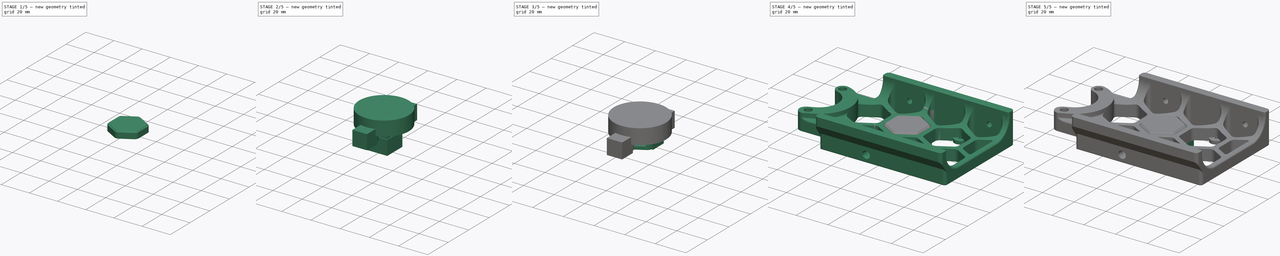
[diagram: build sequence overview — one tinted view per stage of 5, left to right]
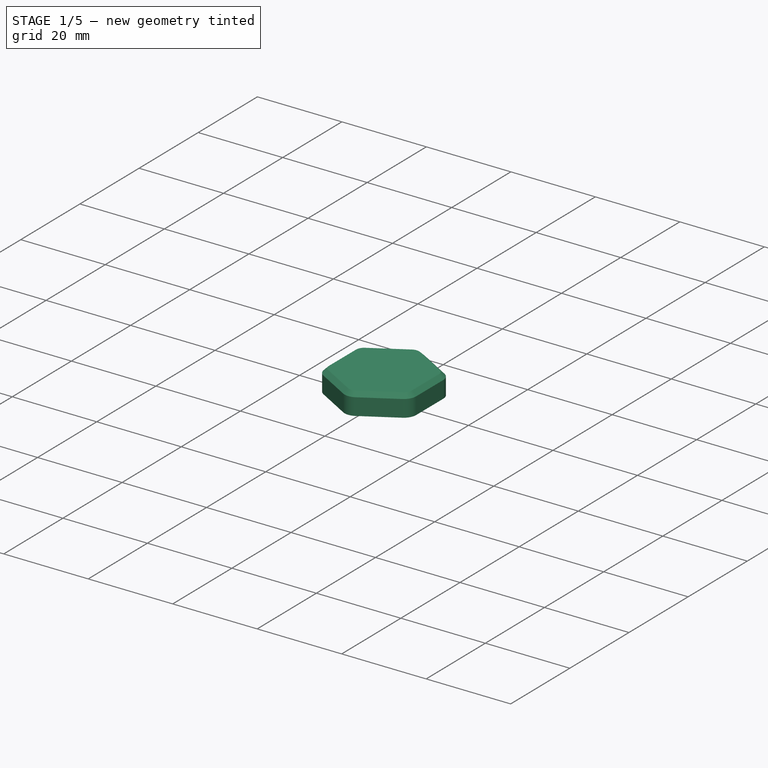
[diagram: stage 1 of 5 — iso view after this stage's code; geometry added in this stage tinted green]
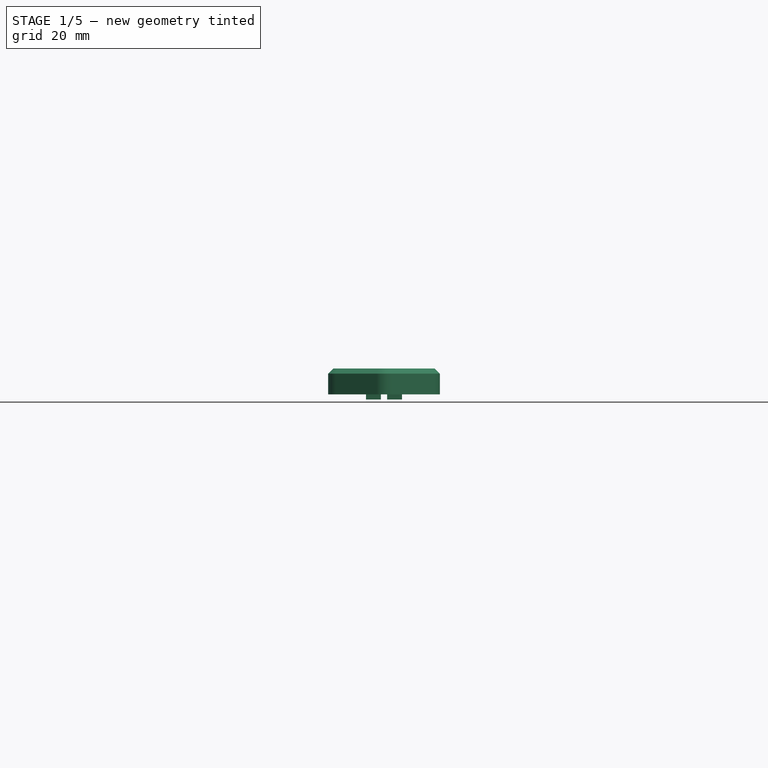
[diagram: stage 1 of 5 — front view after this stage's code; geometry added in this stage tinted green]
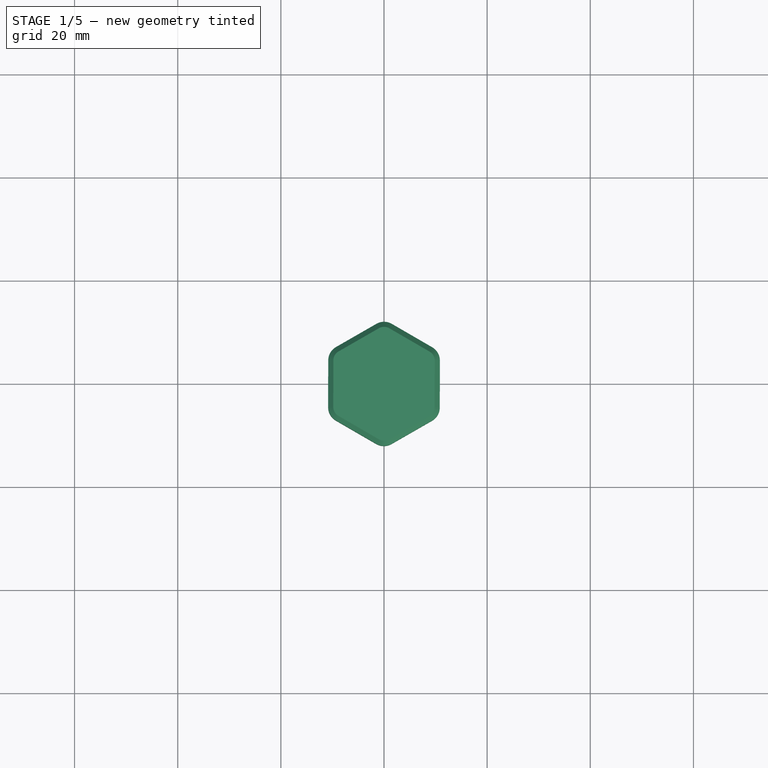
[diagram: stage 1 of 5 — top view after this stage's code; geometry added in this stage tinted green]
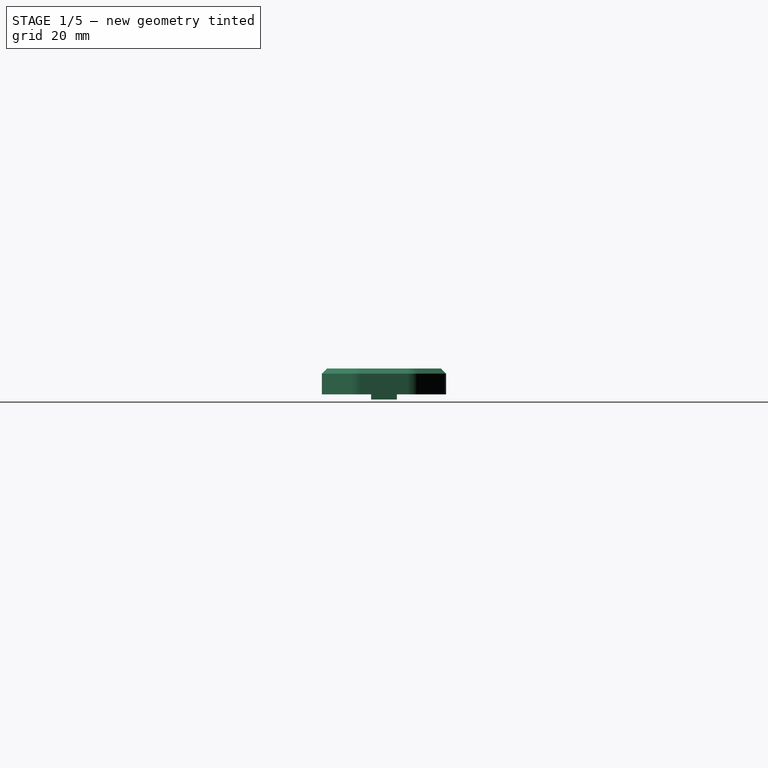
[diagram: stage 1 of 5 — right view after this stage's code; geometry added in this stage tinted green]
FCSTD DOCUMENT  (FreeCAD 0.18R16146 (Git))
Label: skirt-mx
License: Other
LicenseURL: GPL3
objects: Part::Box×13, Part::MultiFuse×12, Part::Cylinder×11, Part::Feature×10, Part::Cut×10, Sketcher::SketchObject×3, PartDesign::Fillet×3, PartDesign::Pad×2, PartDesign::Body×2, PartDesign::Chamfer×2, Part::Chamfer×2, PartDesign::Pocket×1, Part::MultiCommon×1
note: 75 computed .brp shape members not serialized (recipe doc carries the construction recipe); baked Part::Feature solids carry a one-line shape summary decoded from their .brp

FEATURE [PartDesign::Body] Body001
  Group = -> [Sketch001,Pad001,Fillet001,Chamfer001,Sketch002,Pocket,Fillet002,Chamfer002]
  Origin = -> Origin001
  Placement = pos=(0,0,-4) rot=(0,0,1;0rad)
  Tip = -> Chamfer002
FEATURE [Part::Box] Box005  label="Cube005"
  AttacherType = Attacher::AttachEngine3D
  Height = 4
  Length = 7
  Placement = pos=(-3.5,-2.5,1) rot=(0,0,1;0rad)
  Width = 5
FEATURE [Part::Feature] Body001001  label="Body002"
  Placement = pos=(0,0,1) rot=(0,0,1;0rad)
  shape: bbox 21.67 x 24.07 x 10 mm, 51 faces (baked)
FEATURE [Part::Cylinder] Cylinder010
  Angle = 360
  AttacherType = Attacher::AttachEngine3D
  Height = 10
  Radius = 14
FEATURE [Part::MultiCommon] Common006
  Shapes = -> [Body001001,Cylinder010]
FEATURE [Part::Cylinder] Cylinder013
  Angle = 360
  AttacherType = Attacher::AttachEngine3D
  Height = 2
  Radius = 15
FEATURE [Part::Cut] Cut012
  Base = -> Common006
  Tool = -> Cylinder013
FEATURE [Part::Box] Box014  label="Cube014"
  AttacherType = Attacher::AttachEngine3D
  Height = 10
  Length = 4.2
  Placement = pos=(-2.1,-0.6,0) rot=(0,0,1;0rad)
  Width = 1.2
FEATURE [Part::Box] Box015  label="Cube015"
  AttacherType = Attacher::AttachEngine3D
  Height = 10
  Length = 1.2
  Placement = pos=(-0.6,-3.1,0) rot=(0,0,1;0rad)
  Width = 6.2
FEATURE [Part::MultiFuse] Fusion009011
  Shapes = -> [Box015,Box014]
FEATURE [Part::Chamfer] Chamfer003
  Base = -> Fusion009011
  Edges = 4 edges r=0.4: [Edge2,Edge18,Edge35,Edge43]
  Placement = pos=(0,0,-5) rot=(0,0,1;0rad)
FEATURE [Part::MultiFuse] Fusion009014
  Shapes = -> [Cut012,Box005]
FEATURE [Part::Cut] Cut023  label="cap"
  Base = -> Fusion009014
  Placement = pos=(0,0,5) rot=(0,0,1;0rad)
  Tool = -> Chamfer003
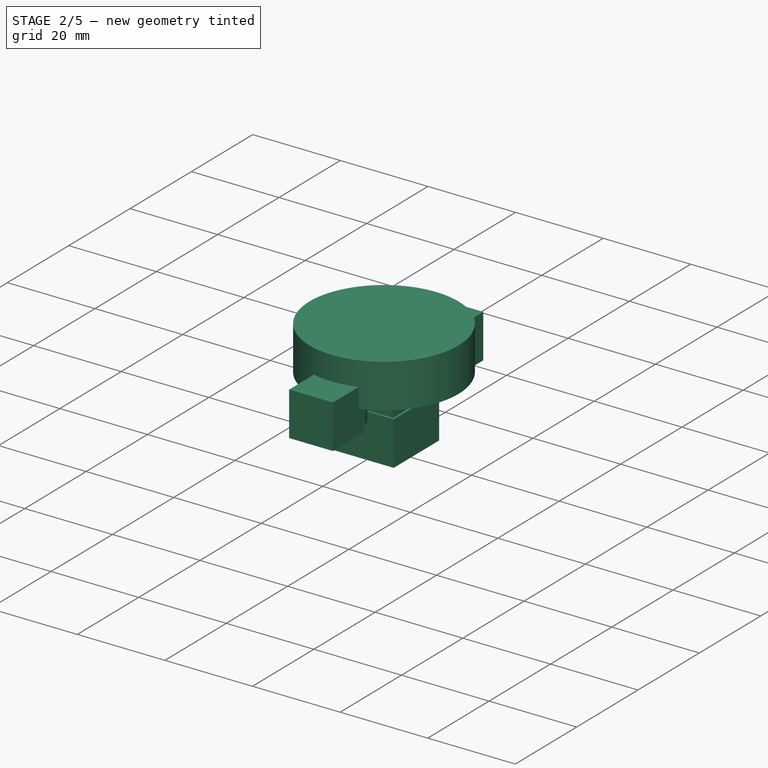
[diagram: stage 2 of 5 — iso view after this stage's code; geometry added in this stage tinted green]
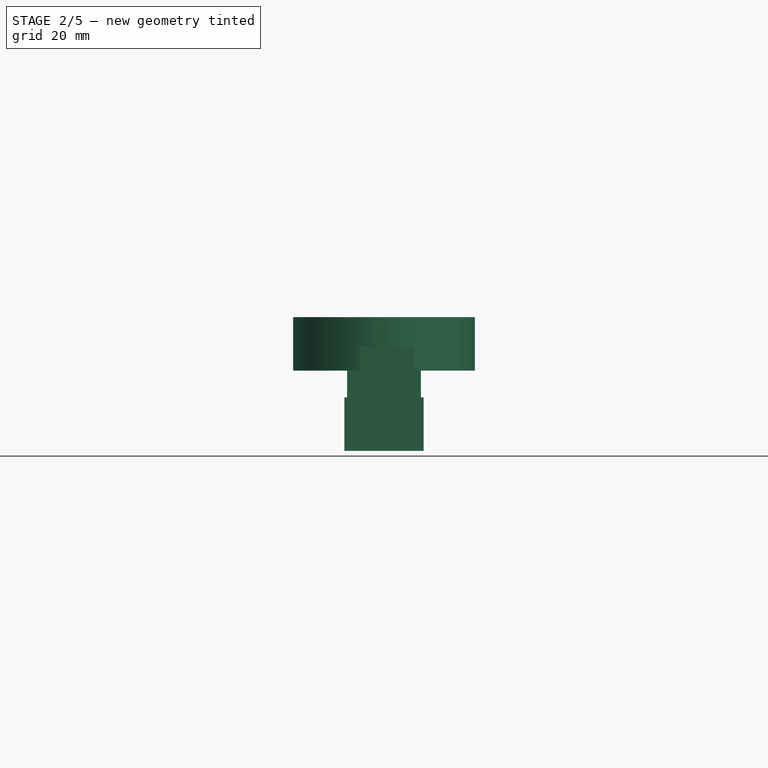
[diagram: stage 2 of 5 — front view after this stage's code; geometry added in this stage tinted green]
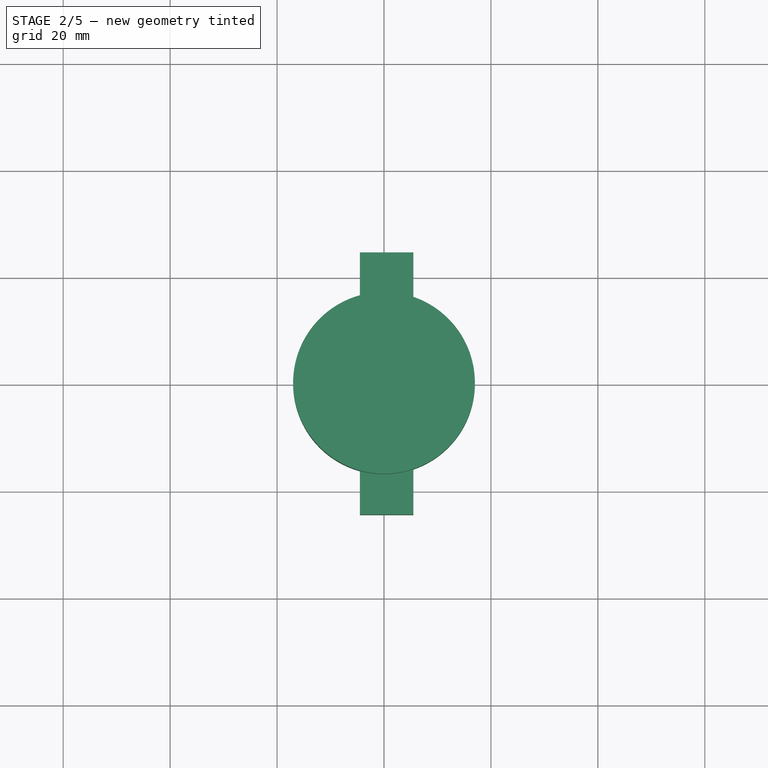
[diagram: stage 2 of 5 — top view after this stage's code; geometry added in this stage tinted green]
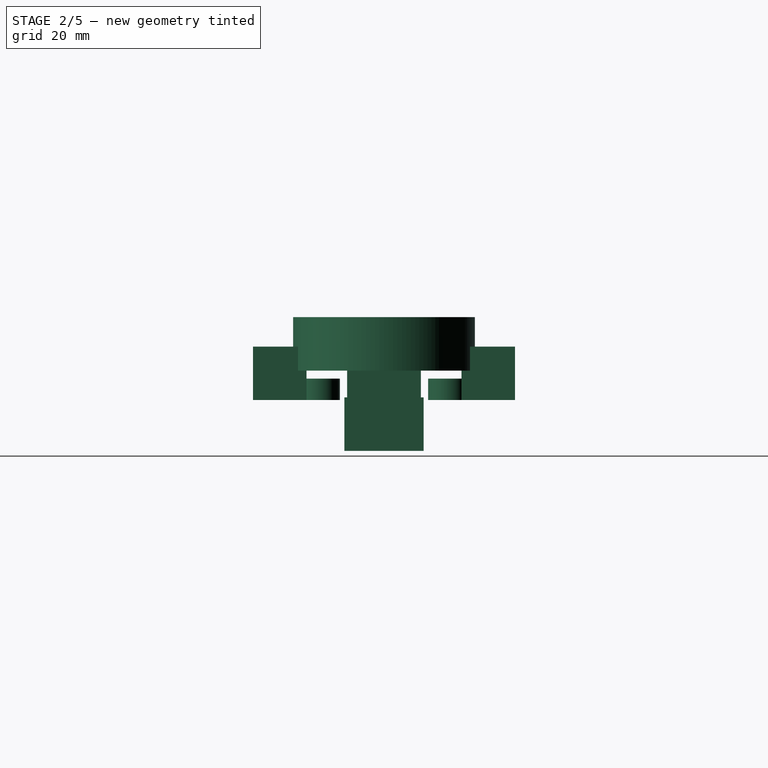
[diagram: stage 2 of 5 — right view after this stage's code; geometry added in this stage tinted green]
FEATURE [Part::Cylinder] Cylinder002
  Angle = 360
  AttacherType = Attacher::AttachEngine3D
  Height = 4
  Placement = pos=(0,12,0) rot=(0,0,1;0rad)
  Radius = 3.75
FEATURE [Part::Cylinder] Cylinder003
  Angle = 360
  AttacherType = Attacher::AttachEngine3D
  Height = 4
  Placement = pos=(0,-12,0) rot=(0,0,1;0rad)
  Radius = 3.75
FEATURE [Part::Cylinder] Cylinder004
  Angle = 360
  AttacherType = Attacher::AttachEngine3D
  Height = 4
  Placement = pos=(0,-12,0) rot=(0,0,1;0rad)
  Radius = 1.25
FEATURE [Part::Cylinder] Cylinder005
  Angle = 360
  AttacherType = Attacher::AttachEngine3D
  Height = 4
  Placement = pos=(0,12,0) rot=(0,0,1;0rad)
  Radius = 1.25
FEATURE [Part::MultiFuse] Fusion011
  Shapes = -> [Cylinder003,Cylinder002]
FEATURE [Part::MultiFuse] Fusion013
  Shapes = -> [Cylinder004,Cylinder005]
FEATURE [Part::Box] Box012  label="Cube012"
  AttacherType = Attacher::AttachEngine3D
  Height = 10
  Length = 13.8
  Placement = pos=(-6.9,-6.9,0) rot=(0,0,1;0rad)
  Width = 13.8
FEATURE [Part::Box] Box013  label="Cube013"
  AttacherType = Attacher::AttachEngine3D
  Height = 10
  Length = 14.8
  Placement = pos=(-7.4,-7.4,-9.5) rot=(0,0,1;0rad)
  Width = 14.8
FEATURE [Part::Box] Box018  label="Cube018"
  AttacherType = Attacher::AttachEngine3D
  Height = 10
  Length = 10
  Placement = pos=(-4.5,-24.5,0) rot=(0,0,1;0rad)
  Width = 10
FEATURE [Part::Box] Box019  label="Cube019"
  AttacherType = Attacher::AttachEngine3D
  Height = 10
  Length = 10
  Placement = pos=(-4.5,14.5,0) rot=(0,0,1;0rad)
  Width = 10
FEATURE [Part::MultiFuse] Fusion009013
  Shapes = -> [Box018,Box019]
FEATURE [Part::Cylinder] Cylinder014
  Angle = 360
  AttacherType = Attacher::AttachEngine3D
  Height = 10
  Placement = pos=(0,0,5.5) rot=(0,0,1;0rad)
  Radius = 17
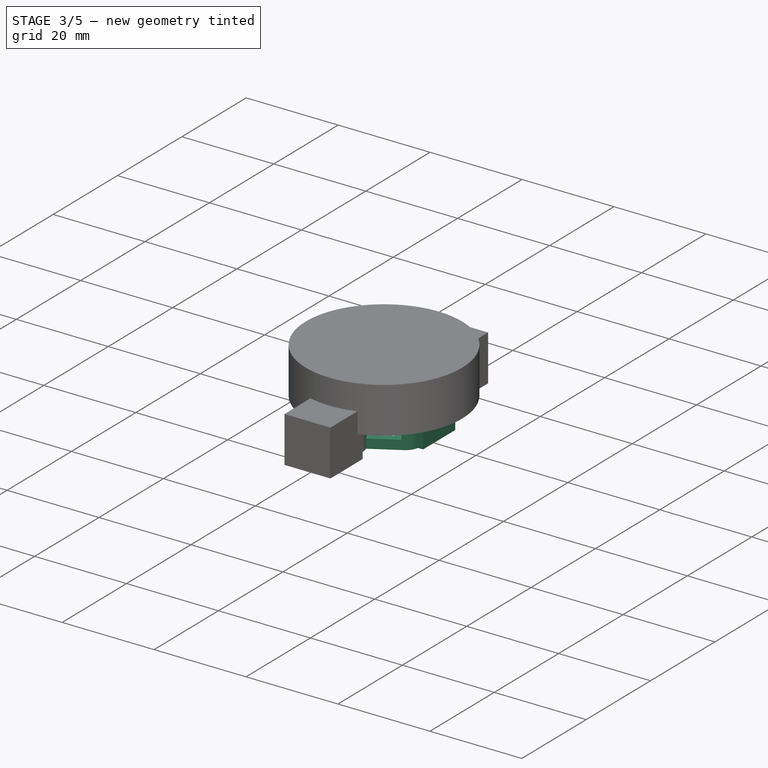
[diagram: stage 3 of 5 — iso view after this stage's code; geometry added in this stage tinted green]
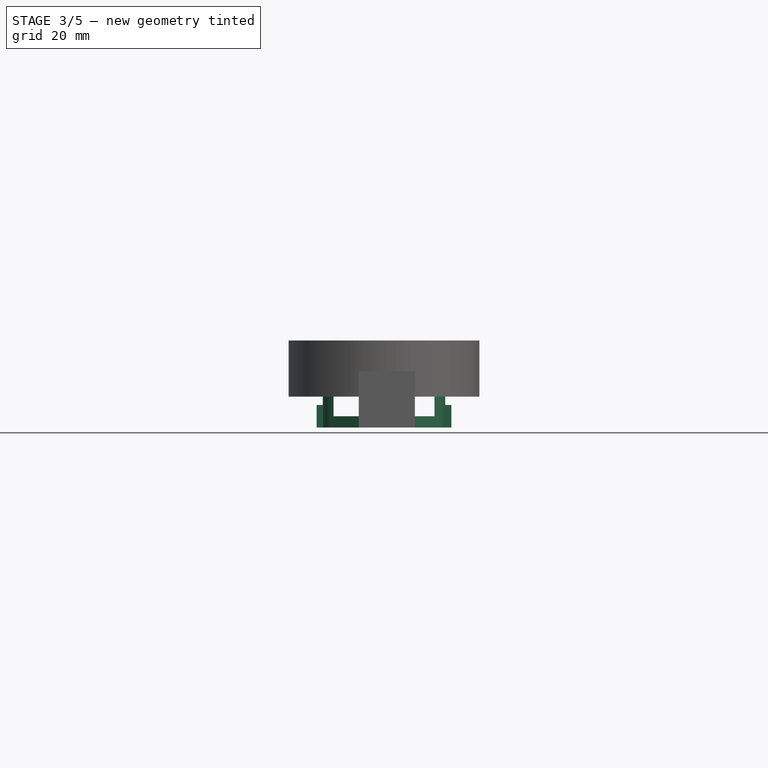
[diagram: stage 3 of 5 — front view after this stage's code; geometry added in this stage tinted green]
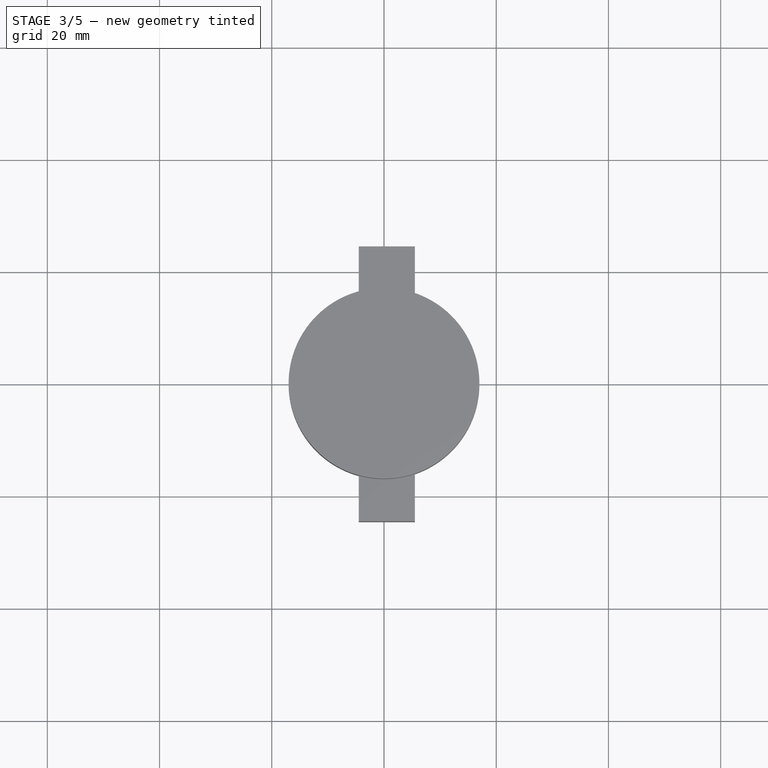
[diagram: stage 3 of 5 — top view after this stage's code; geometry added in this stage tinted green]
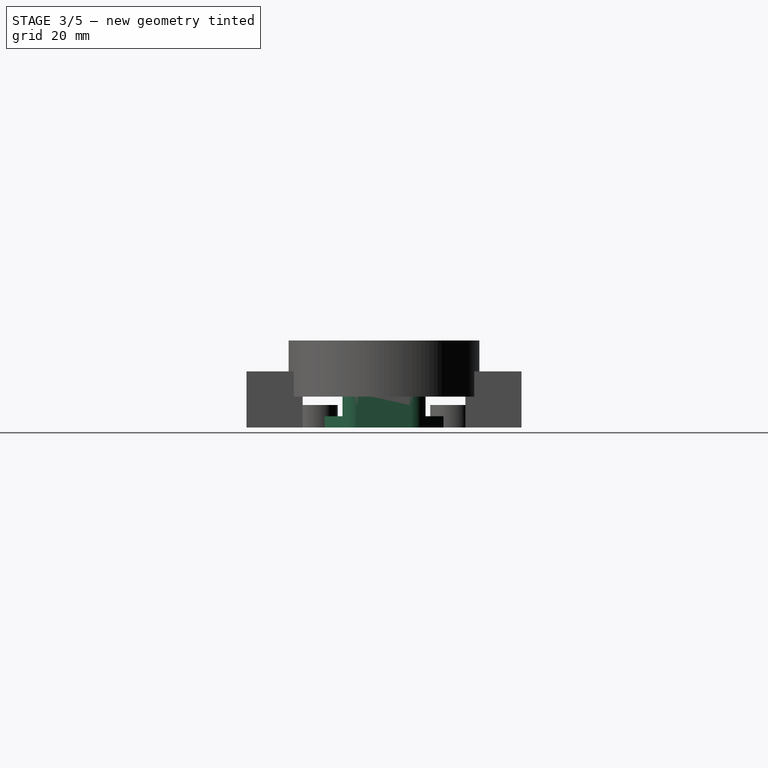
[diagram: stage 3 of 5 — right view after this stage's code; geometry added in this stage tinted green]
FEATURE [Sketcher::SketchObject] Sketch
  MapMode = 5
  Support = -> [XY_Plane]
  sketch-geometry (7):
    g0: LineSegment StartX=0 StartY=12.6 StartZ=0 EndX=-10.9119 EndY=6.3 EndZ=0
    g1: LineSegment StartX=-10.9119 StartY=6.3 StartZ=0 EndX=-10.9119 EndY=-6.3 EndZ=0
    g2: LineSegment StartX=-10.9119 StartY=-6.3 StartZ=0 EndX=-1.8e-15 EndY=-12.6 EndZ=0
    g3: LineSegment StartX=-1.5e-15 StartY=-12.6 StartZ=0 EndX=10.9119 EndY=-6.3 EndZ=0
    g4: LineSegment StartX=10.9119 StartY=-6.3 StartZ=0 EndX=10.9119 EndY=6.3 EndZ=0
    g5: LineSegment StartX=10.9119 StartY=6.3 StartZ=0 EndX=0 EndY=12.6 EndZ=0
    g6: Circle [constr] CenterX=0 CenterY=0 CenterZ=0 NormalX=0 NormalY=0 NormalZ=1 AngleXU=0 Radius=12.6
  constraints (15):
    c: Coincident(g0,g1)
    c: Coincident(g1,g2)
    c: Coincident(g2,g3)
    c: Coincident(g3,g4)
    c: Coincident(g4,g5)
    c: Coincident(g5,g0)
    c: Equal(g0, g1-g5) x5
    c: PointOnObject(g0,g6)
    c: PointOnObject(g1,g6)
    c: PointOnObject(g2,g6)
    c: PointOnObject(g3,g6)
    c: PointOnObject(g4,g6)
    c: PointOnObject(g5,g6)
    c: Coincident(g6,g-1)
    c: PointOnObject(g5,g-2)
FEATURE [PartDesign::Pad] Pad
  Length = 6
  Length2 = 100
  Profile = -> Sketch
  Type = 0
FEATURE [PartDesign::Fillet] Fillet
  Base = -> Pad [Edge8,Edge5,Edge2,Edge1,Edge14,Edge11]
  BaseFeature = -> Pad
  Radius = 3
FEATURE [PartDesign::Body] Body
  Group = -> [Sketch,Pad,Fillet]
  Origin = -> Origin
  Tip = -> Fillet
FEATURE [Part::Box] Box  label="Cube"
  AttacherType = Attacher::AttachEngine3D
  Height = 4
  Length = 24
  Placement = pos=(-12,-5,0) rot=(0,0,1;0rad)
  Width = 10
FEATURE [Part::Box] Box001  label="Cube001"
  AttacherType = Attacher::AttachEngine3D
  Height = 10
  Length = 18
  Placement = pos=(-9,-13,2) rot=(0,0,1;0rad)
  Width = 27
FEATURE [Part::Feature] _00_front_rear_skirt_a_x2mod001001_solid001  label="_00_front_rear_skirt_a_x2mod002 (Solid)001"
  Placement = pos=(-42.5,20.45,-21.5) rot=(0,0,1;0rad)
  shape: bbox 103.6 x 67 x 20 mm, 4380 faces (baked)
FEATURE [Part::MultiFuse] Fusion
  Shapes = -> [Fillet,Box]
FEATURE [Part::Cut] Cut
  Base = -> Fusion
  Tool = -> Box001
FEATURE [Part::MultiFuse] Fusion012
  Shapes = -> [Cut,Fusion011]
FEATURE [Part::Cut] Cut010
  Base = -> Fusion012
  Tool = -> Fusion013
FEATURE [Part::Cut] Cut014
  Base = -> Cut010
  Tool = -> Box012
FEATURE [Part::Cut] Cut015
  Base = -> Cut014
  Tool = -> Box013
FEATURE [Part::Chamfer] Chamfer
  Base = -> Cut015
  Edges = 4 edges r=0.49: [Edge93,Edge94,Edge95,Edge96]
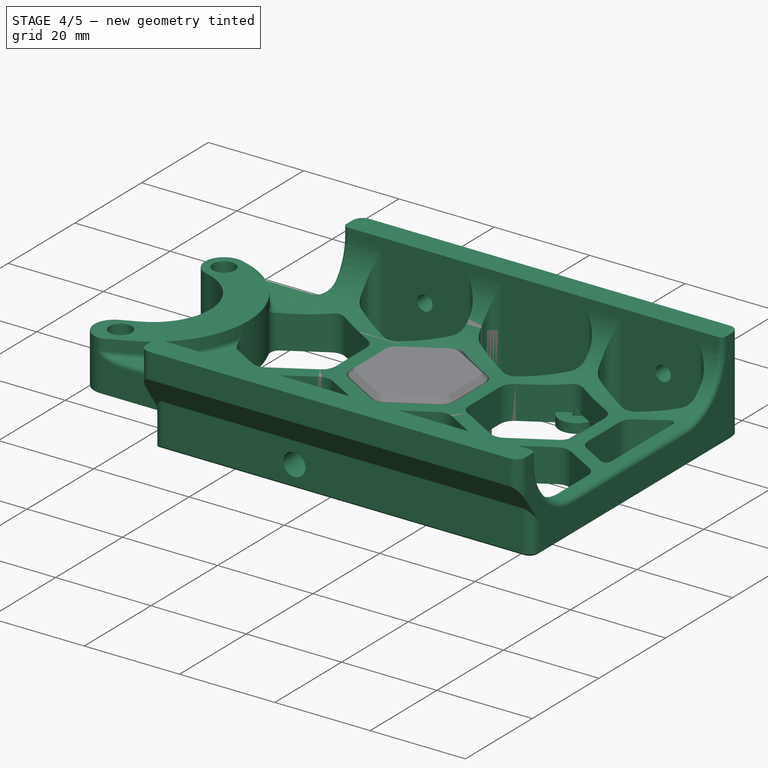
[diagram: stage 4 of 5 — iso view after this stage's code; geometry added in this stage tinted green]
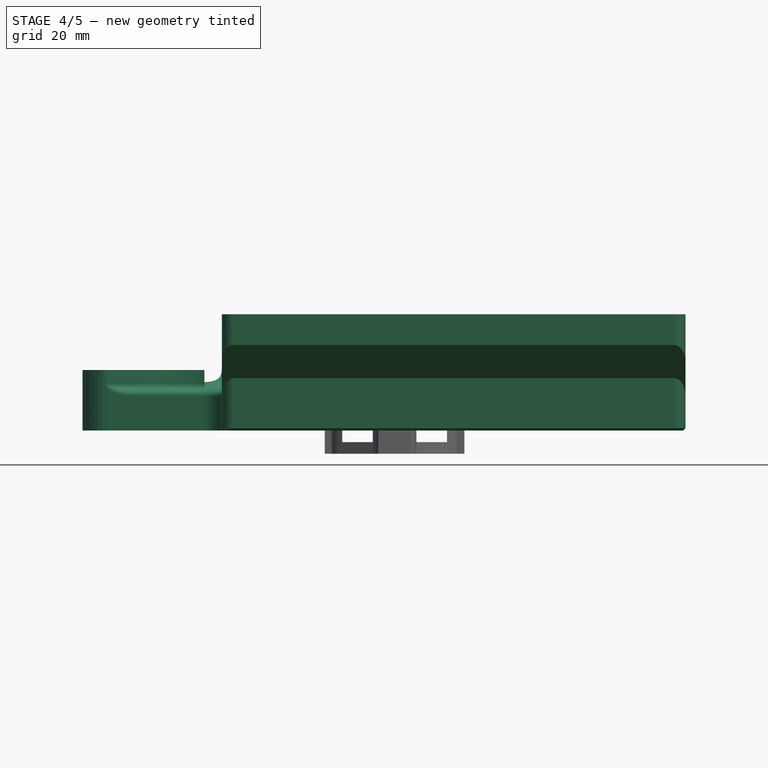
[diagram: stage 4 of 5 — front view after this stage's code; geometry added in this stage tinted green]
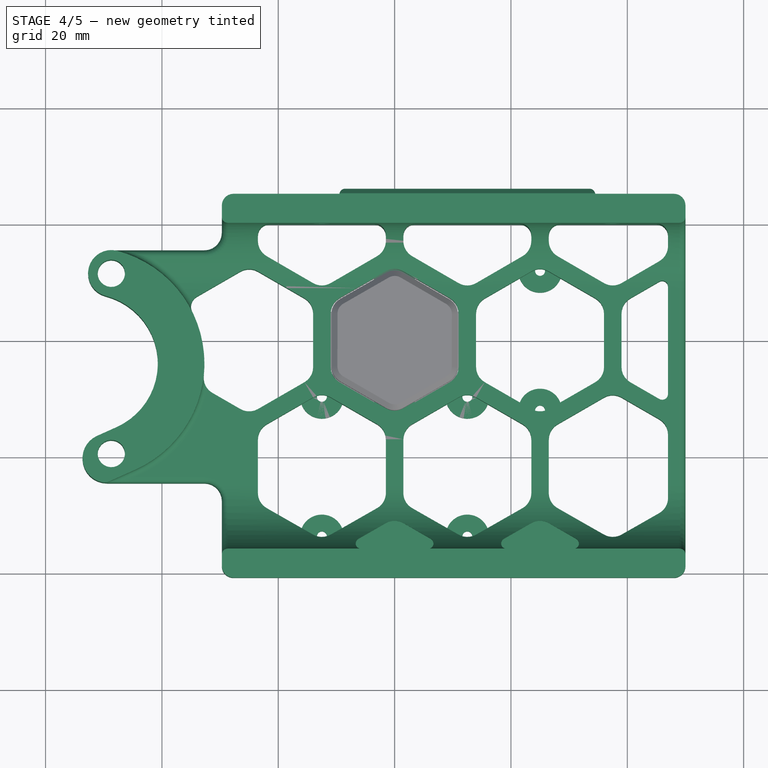
[diagram: stage 4 of 5 — top view after this stage's code; geometry added in this stage tinted green]
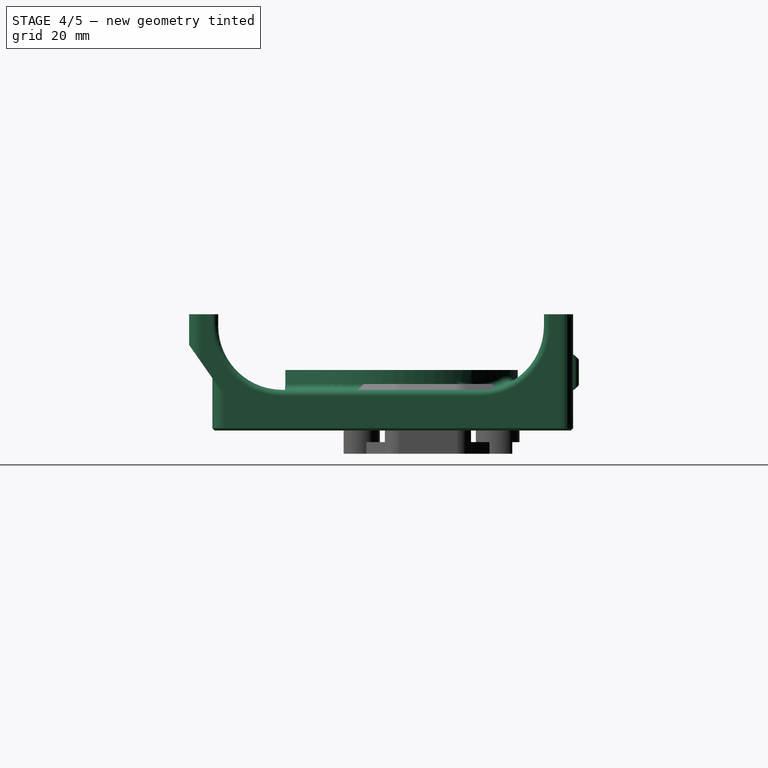
[diagram: stage 4 of 5 — right view after this stage's code; geometry added in this stage tinted green]
FEATURE [Part::Cylinder] Cylinder001
  Angle = 360
  AttacherType = Attacher::AttachEngine3D
  Height = 2
  Placement = pos=(0,12,2) rot=(0,0,1;0rad)
  Radius = 3.75
FEATURE [Part::Cylinder] Cylinder006
  Angle = 360
  AttacherType = Attacher::AttachEngine3D
  Height = 3
  Placement = pos=(0,12,2) rot=(0,0,1;0rad)
  Radius = 0.85
FEATURE [Part::Cylinder] Cylinder007
  Angle = 360
  AttacherType = Attacher::AttachEngine3D
  Height = 3
  Placement = pos=(0,-12,2) rot=(0,0,1;0rad)
  Radius = 0.85
FEATURE [Part::MultiFuse] Fusion009  label="inner"
  Shapes = -> [Cylinder006,Cylinder007]
FEATURE [Part::Feature] Fusion009001  label="inner001"
  shape: bbox 1.7 x 25.7 x 3 mm, 6 faces, 2 solids (baked)
FEATURE [Part::Feature] Fusion007001  label="outer001"
  shape: bbox 7.5 x 31.5 x 2 mm, 6 faces, 2 solids (baked)
FEATURE [Part::Feature] Fusion009002  label="outer002"
  Placement = pos=(-12.5,-21.65,0) rot=(0,0,1;0rad)
  shape: bbox 7.5 x 31.5 x 2 mm, 6 faces, 2 solids (baked)
FEATURE [Part::Feature] Fusion009003  label="inner002"
  Placement = pos=(-12.5,-21.65,0) rot=(0,0,1;0rad)
  shape: bbox 1.7 x 25.7 x 3 mm, 6 faces, 2 solids (baked)
FEATURE [Part::Feature] Fusion009004  label="inner003"
  Placement = pos=(12.5,-21.65,0) rot=(0,0,1;0rad)
  shape: bbox 1.7 x 25.7 x 3 mm, 6 faces, 2 solids (baked)
FEATURE [Part::Feature] Fusion009005  label="outer003"
  Placement = pos=(12.5,-21.65,0) rot=(0,0,1;0rad)
  shape: bbox 7.5 x 31.5 x 2 mm, 6 faces, 2 solids (baked)
FEATURE [Part::Feature] Fusion009006  label="outer004"
  Placement = pos=(25,0,0) rot=(0,0,1;0rad)
  shape: bbox 7.5 x 31.5 x 2 mm, 6 faces, 2 solids (baked)
FEATURE [Part::Feature] Fusion009007  label="inner004"
  Placement = pos=(25,0,0) rot=(0,0,1;0rad)
  shape: bbox 1.7 x 25.7 x 3 mm, 6 faces, 2 solids (baked)
FEATURE [Part::MultiFuse] Fusion009008
  Shapes = -> [Fusion009007,Fusion009004,Fusion009003,Fusion009001]
FEATURE [Part::MultiFuse] Fusion009009
  Shapes = -> [Fusion009006,Fusion009005,Fusion009002,Fusion007001]
FEATURE [Part::Box] Box016  label="Cube016"
  AttacherType = Attacher::AttachEngine3D
  Height = 10
  Length = 54
  Placement = pos=(-29,-46.65,0) rot=(0,0,1;0rad)
  Width = 10
FEATURE [Part::Cut] Cut017
  Base = -> Fusion009009
  Tool = -> Box016
FEATURE [Part::MultiFuse] Fusion009010
  Shapes = -> [_00_front_rear_skirt_a_x2mod001001_solid001,Cut017]
FEATURE [Part::Cut] Cut018  label="SKIRT"
  Base = -> Fusion009010
  Placement = pos=(0,0,2) rot=(0,0,1;0rad)
  Tool = -> Fusion009008
FEATURE [Part::Cut] Cut021
  Base = -> Chamfer
  Tool = -> Fusion009013
FEATURE [Part::Cut] Cut022  label="adapter"
  Base = -> Cut021
  Tool = -> Cylinder014
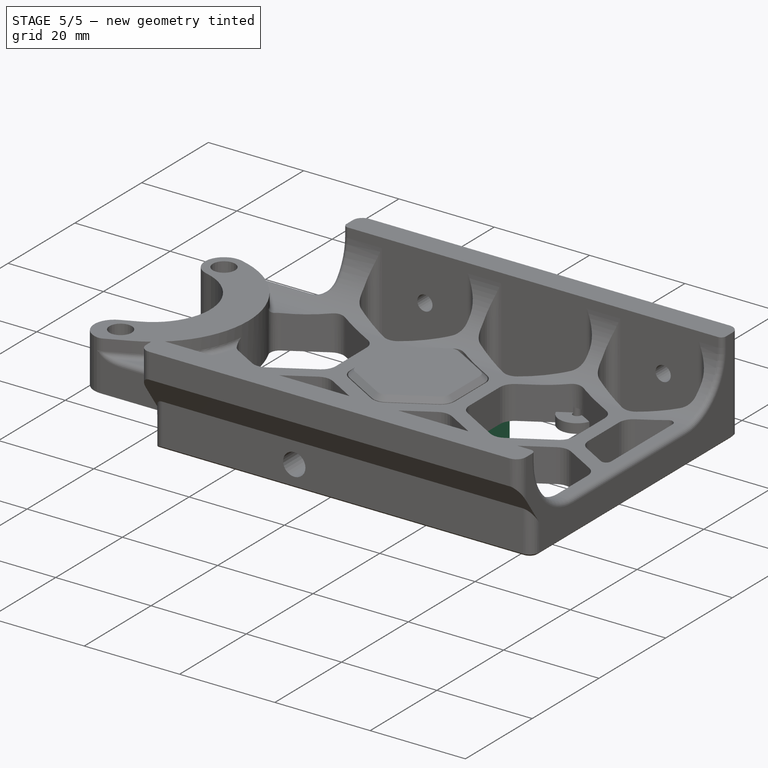
[diagram: stage 5 of 5 — iso view after this stage's code; geometry added in this stage tinted green]
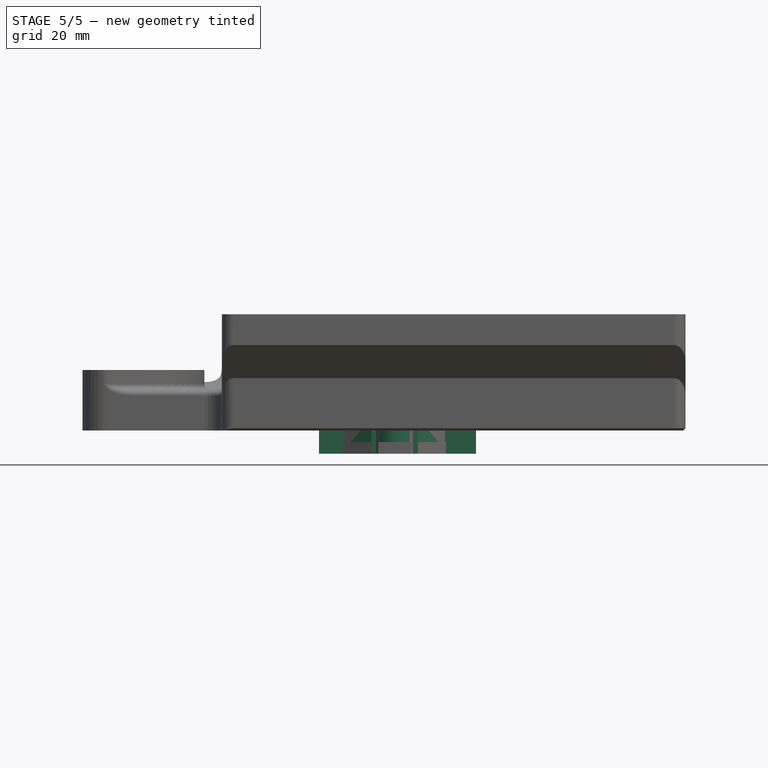
[diagram: stage 5 of 5 — front view after this stage's code; geometry added in this stage tinted green]
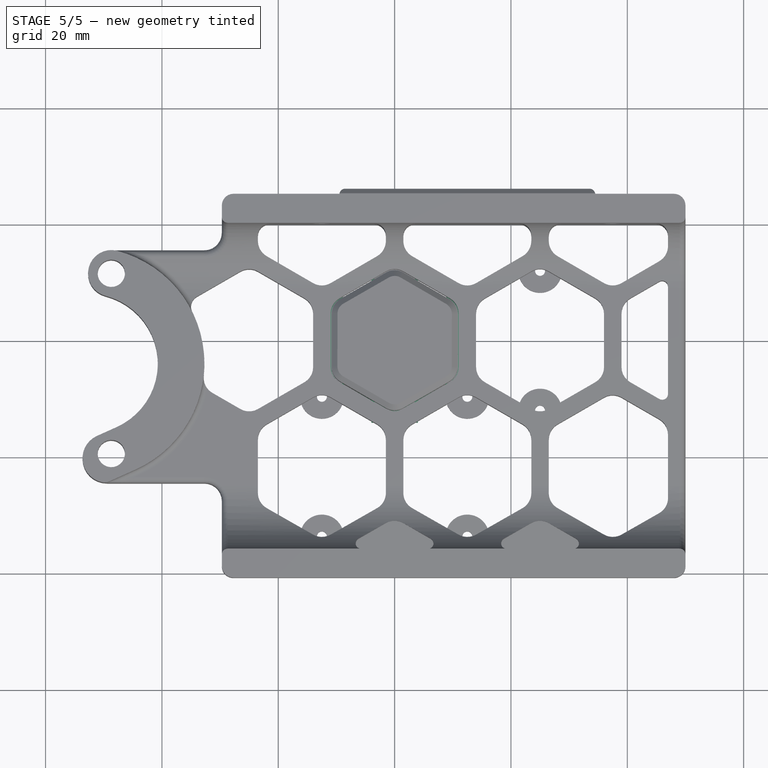
[diagram: stage 5 of 5 — top view after this stage's code; geometry added in this stage tinted green]
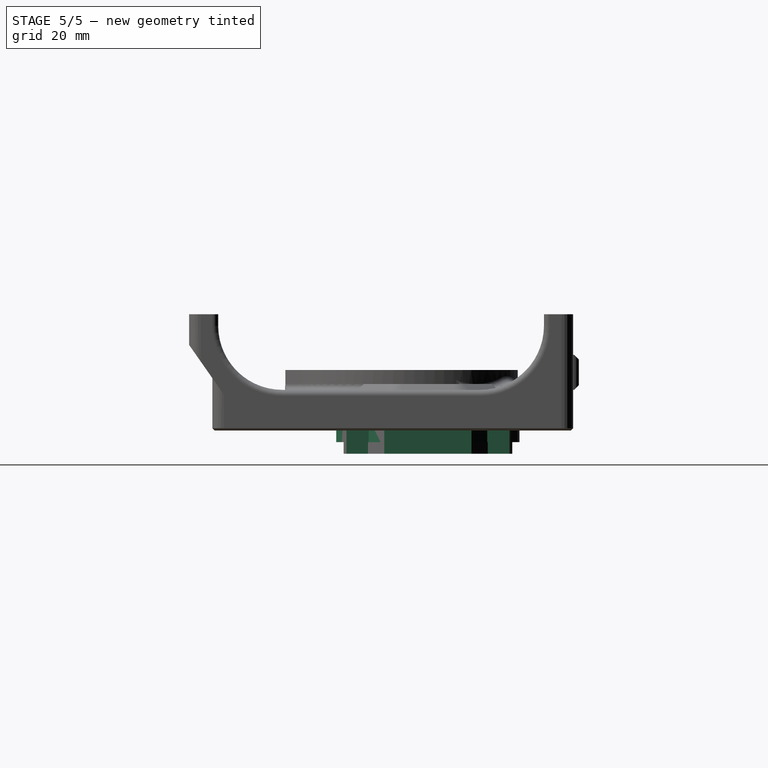
[diagram: stage 5 of 5 — right view after this stage's code; geometry added in this stage tinted green]
FEATURE [Part::Cylinder] Cylinder
  Angle = 360
  AttacherType = Attacher::AttachEngine3D
  Height = 2
  Placement = pos=(0,-12,2) rot=(0,0,1;0rad)
  Radius = 3.75
FEATURE [Part::Box] Box002  label="Cube002"
  AttacherType = Attacher::AttachEngine3D
  Height = 10
  Length = 14
  Placement = pos=(-7,-7,0) rot=(0,0,1;0rad)
  Width = 14
FEATURE [Sketcher::SketchObject] Sketch001
  MapMode = 5
  Support = -> [XY_Plane001]
  sketch-geometry (7):
    g0: LineSegment StartX=0.024307 StartY=12.5 StartZ=0 EndX=-10.8132 EndY=6.27105 EndZ=0
    g1: LineSegment StartX=-10.8132 StartY=6.27105 StartZ=0 EndX=-10.8375 EndY=-6.22895 EndZ=0
    g2: LineSegment StartX=-10.8375 StartY=-6.22895 StartZ=0 EndX=-0.024307 EndY=-12.5 EndZ=0
    g3: LineSegment StartX=-0.024307 StartY=-12.5 StartZ=0 EndX=10.8132 EndY=-6.27105 EndZ=0
    g4: LineSegment StartX=10.8132 StartY=-6.27105 StartZ=0 EndX=10.8375 EndY=6.22895 EndZ=0
    g5: LineSegment StartX=10.8375 StartY=6.22895 StartZ=0 EndX=0.024307 EndY=12.5 EndZ=0
    g6: Circle [constr] CenterX=0 CenterY=0 CenterZ=0 NormalX=0 NormalY=0 NormalZ=1 AngleXU=0 Radius=12.5
  constraints (14):
    c: Coincident(g0,g1)
    c: Coincident(g1,g2)
    c: Coincident(g2,g3)
    c: Coincident(g3,g4)
    c: Coincident(g4,g5)
    c: Coincident(g5,g0)
    c: Equal(g0, g1-g5) x5
    c: PointOnObject(g0,g6)
    c: PointOnObject(g1,g6)
    c: PointOnObject(g2,g6)
    c: PointOnObject(g3,g6)
    c: PointOnObject(g4,g6)
    c: PointOnObject(g5,g6)
    c: Coincident(g6,g-1)
FEATURE [PartDesign::Pad] Pad001
  Length = 10
  Length2 = 100
  Profile = -> Sketch001
  Type = 0
FEATURE [PartDesign::Fillet] Fillet001
  Base = -> Pad001 [Edge5,Edge2,Edge8,Edge11,Edge1,Edge14]
  BaseFeature = -> Pad001
  Radius = 3
FEATURE [PartDesign::Chamfer] Chamfer001
  Base = -> Fillet001 [Face5]
  BaseFeature = -> Fillet001
  Size = 1
FEATURE [Sketcher::SketchObject] Sketch002
  MapMode = 5
  Placement = pos=(0,0,0) rot=(1,0,0;3.14159rad)
  Support = -> [Chamfer001]
  sketch-geometry (7):
    g0: LineSegment StartX=0 StartY=11 StartZ=0 EndX=-9.52628 EndY=5.5 EndZ=0
    g1: LineSegment StartX=-9.52628 StartY=5.5 StartZ=0 EndX=-9.52628 EndY=-5.5 EndZ=0
    g2: LineSegment StartX=-9.52628 StartY=-5.5 StartZ=0 EndX=-1.8e-15 EndY=-11 EndZ=0
    g3: LineSegment StartX=-1.8e-15 StartY=-11 StartZ=0 EndX=9.52628 EndY=-5.5 EndZ=0
    g4: LineSegment StartX=9.52628 StartY=-5.5 StartZ=0 EndX=9.52628 EndY=5.5 EndZ=0
    g5: LineSegment StartX=9.52628 StartY=5.5 StartZ=0 EndX=0 EndY=11 EndZ=0
    g6: Circle [constr] CenterX=0 CenterY=0 CenterZ=0 NormalX=0 NormalY=0 NormalZ=1 AngleXU=0 Radius=11
  constraints (15):
    c: Coincident(g0,g1)
    c: Coincident(g1,g2)
    c: Coincident(g2,g3)
    c: Coincident(g3,g4)
    c: Coincident(g4,g5)
    c: Coincident(g5,g0)
    c: Equal(g0, g1-g5) x5
    c: PointOnObject(g0,g6)
    c: PointOnObject(g1,g6)
    c: PointOnObject(g2,g6)
    c: PointOnObject(g3,g6)
    c: PointOnObject(g4,g6)
    c: PointOnObject(g5,g6)
    c: Coincident(g6,g-1)
    c: PointOnObject(g5,g-2)
FEATURE [PartDesign::Pocket] Pocket
  BaseFeature = -> Chamfer001
  Length = 8
  Length2 = 100
  Profile = -> Sketch002
  Type = 0
FEATURE [PartDesign::Fillet] Fillet002
  Base = -> Pocket [Edge60,Edge59,Edge62,Edge64,Edge66,Edge68]
  BaseFeature = -> Pocket
  Radius = 2
FEATURE [PartDesign::Chamfer] Chamfer002
  Base = -> Fillet002 [Face26]
  BaseFeature = -> Fillet002
  Size = 1
FEATURE [Part::Box] Box006  label="Cube006"
  AttacherType = Attacher::AttachEngine3D
  Height = 5
  Length = 8
  Placement = pos=(-4,-14,0) rot=(0,0,1;0rad)
  Width = 28
FEATURE [Part::Box] Box007  label="Cube007"
  AttacherType = Attacher::AttachEngine3D
  Height = 5
  Length = 27
  Placement = pos=(-13,-7.5,0) rot=(0,0,1;0rad)
  Width = 15
FEATURE [Part::MultiFuse] Fusion007  label="outer"
  Shapes = -> [Cylinder001,Cylinder]
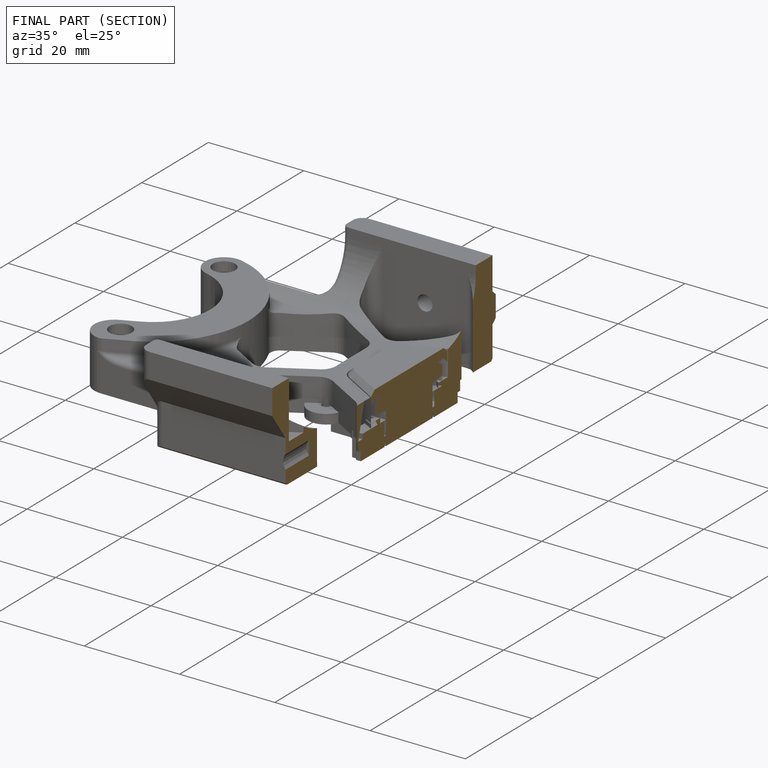
[diagram: finished part — half-section view (interior)]
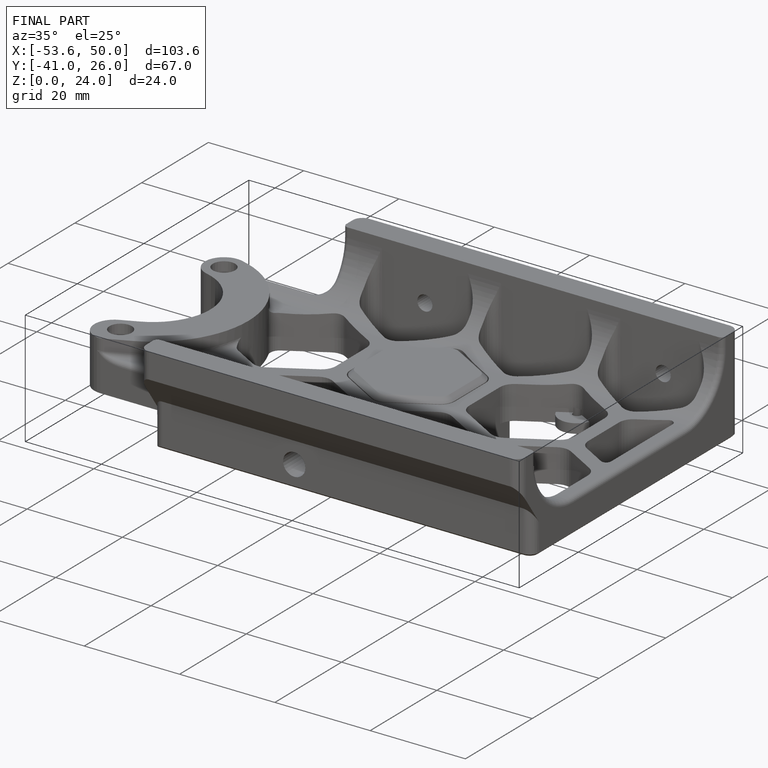
[diagram: finished part — iso view with bounding-box wireframe]
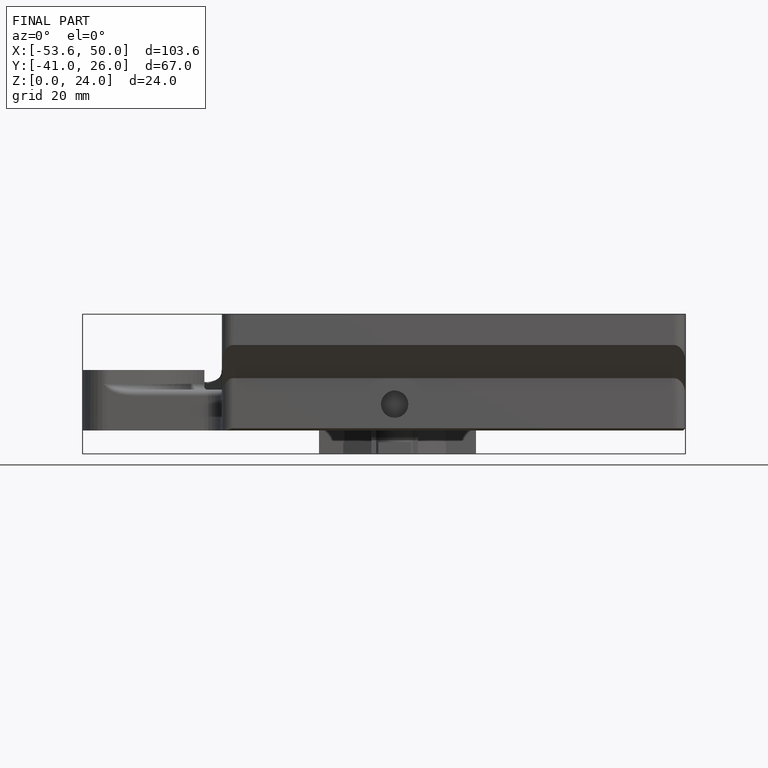
[diagram: finished part — front view with bounding-box wireframe]
